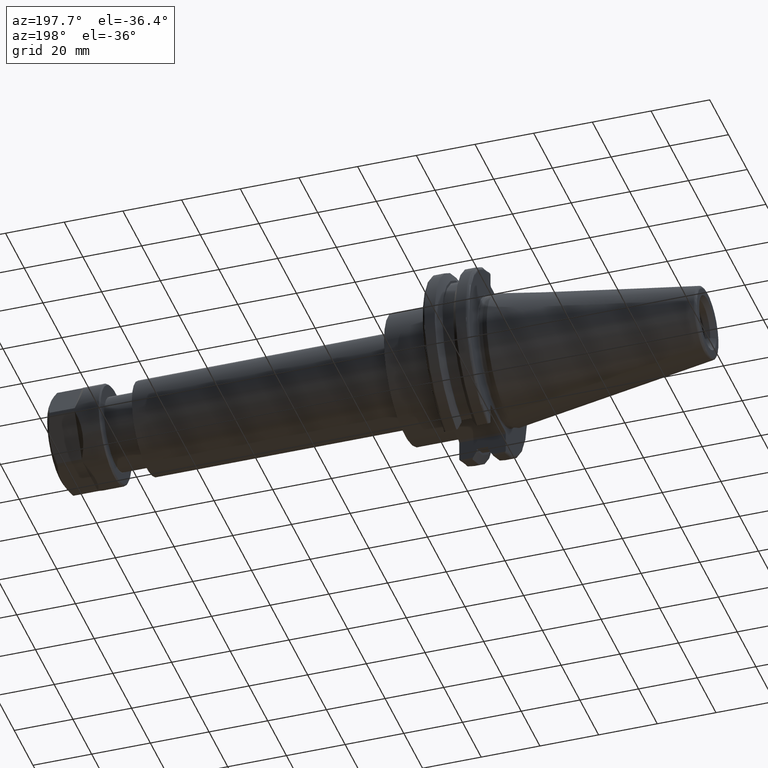
[diagram: clean part render]
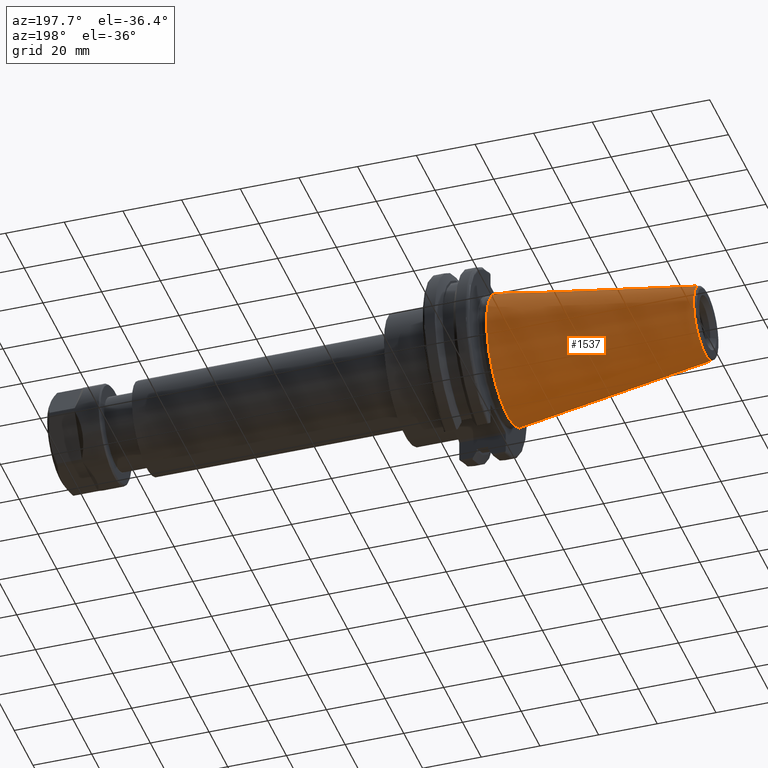
[diagram: same view with one face highlighted and labeled with its STEP entity id]
A machine part, auxiliary view. The second image highlights one B-rep face of the part: STEP entity #1537.
In plain terms, the highlighted conical surface has half-angle 8.297 deg.
Its self-contained STEP definition (entity closure, byte-faithful):
#182=CONICAL_SURFACE('',#1738,17.2484375,0.144812498238939);
#224=FACE_OUTER_BOUND('',#323,.T.);
#323=EDGE_LOOP('',(#1209,#1210,#1211,#1212,#1213));
#445=LINE('',#2663,#545);
#545=VECTOR('',#2042,17.2484375);
#622=CIRCLE('',#1732,12.3966635780937);
#623=CIRCLE('',#1733,12.3966635780937);
#627=CIRCLE('',#1739,22.225);
#751=VERTEX_POINT('',#2650);
#752=VERTEX_POINT('',#2651);
#755=VERTEX_POINT('',#2661);
#924=EDGE_CURVE('',#751,#752,#622,.T.);
#925=EDGE_CURVE('',#752,#751,#623,.T.);
#929=EDGE_CURVE('',#755,#755,#627,.T.);
#930=EDGE_CURVE('',#755,#752,#445,.T.);
#1209=ORIENTED_EDGE('',*,*,#929,.F.);
#1210=ORIENTED_EDGE('',*,*,#930,.T.);
#1211=ORIENTED_EDGE('',*,*,#924,.F.);
#1212=ORIENTED_EDGE('',*,*,#925,.F.);
#1213=ORIENTED_EDGE('',*,*,#930,.F.);
#1537=ADVANCED_FACE('',(#224),#182,.T.);
#1732=AXIS2_PLACEMENT_3D('',#2652,#2026,#2027);
#1733=AXIS2_PLACEMENT_3D('',#2653,#2028,#2029);
#1738=AXIS2_PLACEMENT_3D('',#2660,#2038,#2039);
#1739=AXIS2_PLACEMENT_3D('',#2662,#2040,#2041);
#2026=DIRECTION('center_axis',(-1.,0.,0.));
#2027=DIRECTION('ref_axis',(0.,-1.,3.06161699786838E-17));
#2028=DIRECTION('center_axis',(-1.,0.,0.));
#2029=DIRECTION('ref_axis',(0.,-1.,3.06161699786838E-17));
#2038=DIRECTION('center_axis',(1.,0.,0.));
#2039=DIRECTION('ref_axis',(0.,1.,0.));
#2040=DIRECTION('center_axis',(1.,0.,0.));
#2041=DIRECTION('ref_axis',(0.,0.,-1.));
#2042=DIRECTION('',(-0.989532981063282,0.144306893071729,1.76724974695192E-17));
#2650=CARTESIAN_POINT('',(-67.3943068930717,-1.5181534371019E-15,12.3966635780937));
#2651=CARTESIAN_POINT('',(-67.3943068930718,-12.3966635780937,-1.5181534371019E-15));
#2652=CARTESIAN_POINT('Origin',(-67.3943068930717,0.,-1.89769179637738E-15));
#2653=CARTESIAN_POINT('Origin',(-67.3943068930717,0.,-1.89769179637738E-15));
#2660=CARTESIAN_POINT('Origin',(-34.125,0.,0.));
#2661=CARTESIAN_POINT('',(0.,-22.225,-2.72177751110499E-15));
#2662=CARTESIAN_POINT('Origin',(0.,0.,0.));
#2663=CARTESIAN_POINT('',(-34.125,-17.2484375,-2.11232437746682E-15));